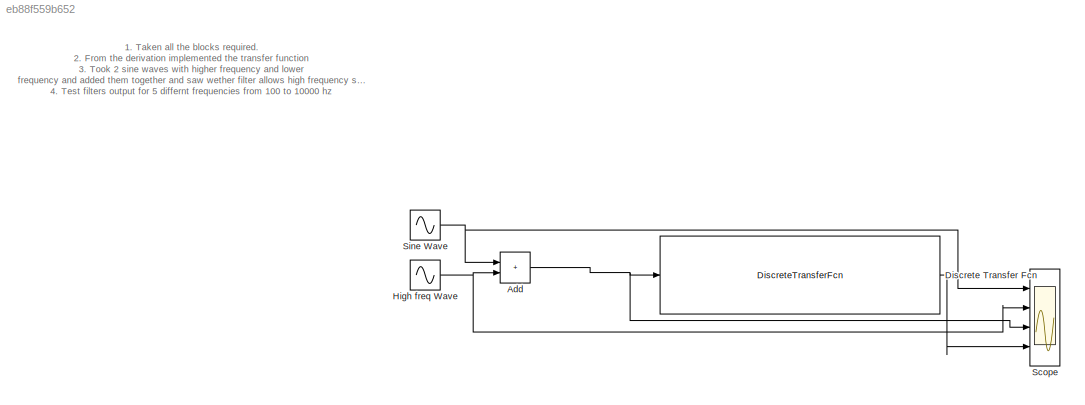
MODEL slx_eb88f559b652
KIND model
CONFIG AbsTol = auto
CONFIG EnableMultiTasking = off
CONFIG FixedStep = auto
CONFIG MaxStep = auto
CONFIG MinStep = auto
CONFIG RelTol = 1e-3
CONFIG SampleTimeConstraint = Unconstrained
CONFIG Solver = VariableStepAuto
CONFIG SolverName = VariableStepAuto
CONFIG StartTime = 0.0
CONFIG StopTime = 10.0
BLOCK [Sum] Add
  IconShape = rectangular
  Ports = [2, 1]
BLOCK [DiscreteTransferFcn] Discrete Transfer Fcn
  Denominator = [1 -0.1584]
  InputPortMap = u0
  Numerator = [0.5792 -0.5792]
  Ports = [1, 1]
BLOCK [Sin] High freq Wave
  Amplitude = 5
  Frequency = 300
  Ports = [0, 1]
  SampleTime = 0
BLOCK [Scope] Scope
  Floating = off
  NumInputPorts = 4
  Ports = [4]
  ScopeSpecificationString = Simulink.scopes.TimeScopeBlockCfg('CurrentConfiguration', extmgr.ConfigurationSet(extmgr.Configuration('Core','General UI',true),extmgr.Configuration('Core','Source UI',true),extmgr.Configuration('Sources','WiredSimulink',true),extmgr.Configuration('Visuals','Time Domain',true,'SerializedDisplays',{struct('MinYLimReal','-6.25','MaxYLimReal','6.25','YLabelReal','','MinYLimMag','0.00000','MaxYLimMag...<+3444ch>
BLOCK [Sin] Sine Wave
  Amplitude = 5
  Frequency = 50
  Ports = [0, 1]
  SampleTime = 0
ANNOTATION (root): 1. Taken all the blocks required. 2. From the derivation implemented the transfer function 3. Took 2 sine waves with higher frequency and lower frequency and added them together and saw wether filter allows high frequency signal 4. Test filters output for 5 differnt frequencies from 100 to 10000 hz
NET Add:1 -> Discrete Transfer Fcn:1, Scope:3
LINE Discrete Transfer Fcn:1 -> Scope:4
NET High freq Wave:1 -> Add:2, Scope:2
NET Sine Wave:1 -> Add:1, Scope:1
note: NET lines group one-source signal fan-out (src -> all destinations, sorted); 1:1 wires keep LINE
